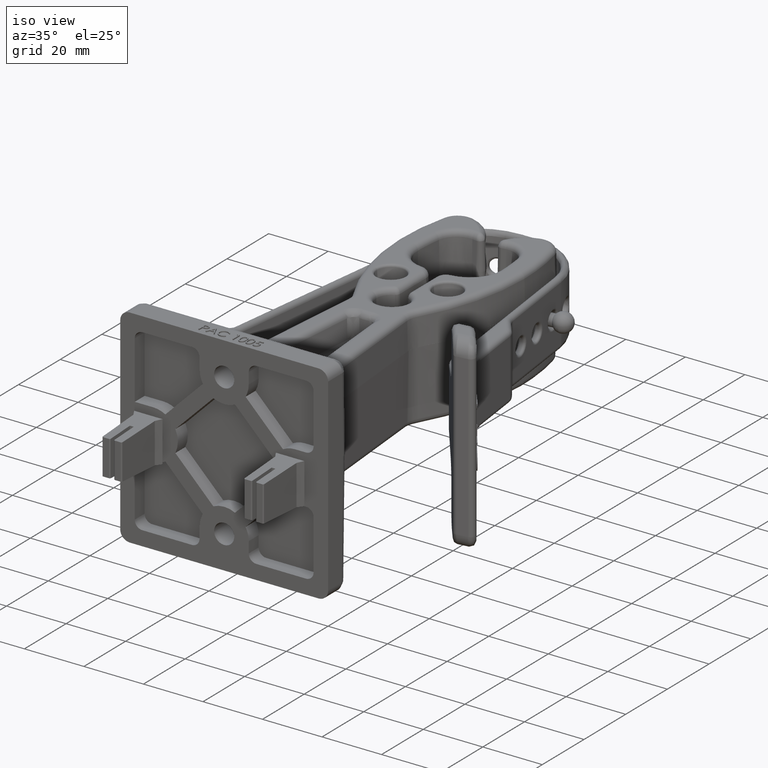
[diagram: clean part render]
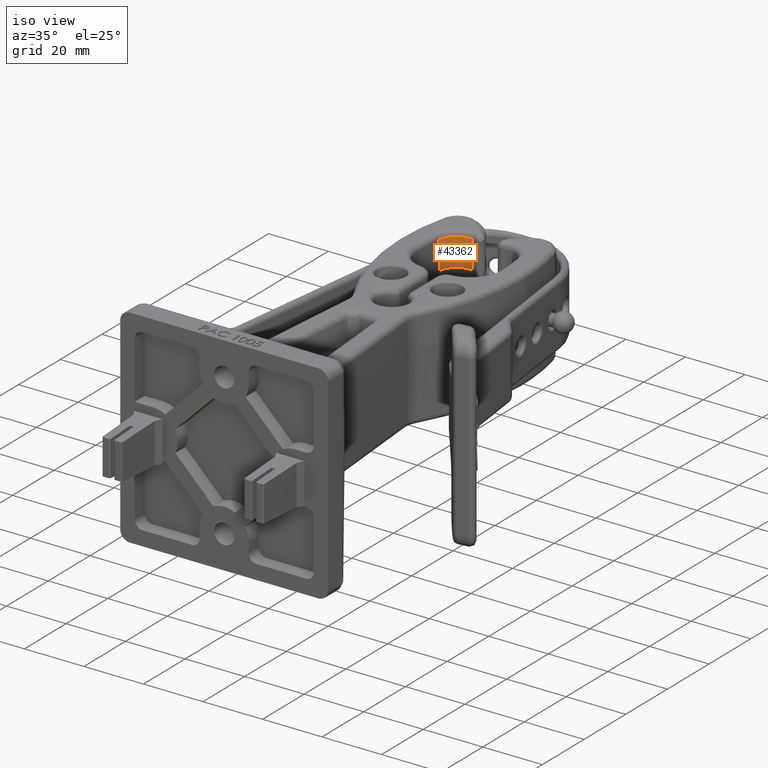
[diagram: same view with one face highlighted and labeled with its STEP entity id]
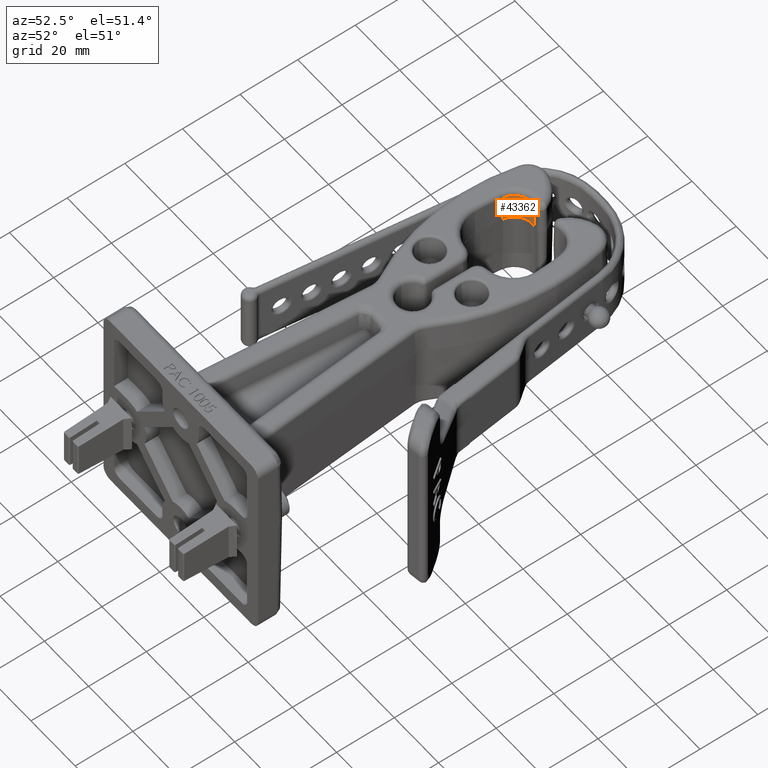
[diagram: same view with one face highlighted and labeled with its STEP entity id]
A machine part, iso view. The second image highlights one B-rep face of the part: STEP entity #43362.
A second angle (auxiliary view) of the same face is appended — the face is thin or edge-on in the first view.
In plain terms, the highlighted conical surface has half-angle 1 deg.
Its self-contained STEP definition (entity closure, byte-faithful):
#6987 = CARTESIAN_POINT ( 'NONE',  ( -0.2553476726425473200, 4.251692925097636100, 0.2500000000000000000 ) ) ;
#6988 = DIRECTION ( 'NONE',  ( -0.0000000000000000000, -0.0000000000000000000, -1.000000000000000000 ) ) ;
#6989 = DIRECTION ( 'NONE',  ( 1.000000000000000000, 0.0000000000000000000, 0.0000000000000000000 ) ) ;
#7461 = CIRCLE ( 'NONE', #24233, 0.2499999999999998100 ) ;
#7619 = LINE ( 'NONE', #8606, #7623 ) ;
#7623 = VECTOR ( 'NONE', #8607, 39.37007874015748100 ) ;
#7626 = CIRCLE ( 'NONE', #24289, 0.2563503085030424100 ) ;
#7629 = LINE ( 'NONE', #8610, #7630 ) ;
#7630 = VECTOR ( 'NONE', #8611, 39.37007874015748100 ) ;
#8593 = CARTESIAN_POINT ( 'NONE',  ( -0.2553476726425473200, 4.251692925097636100, 0.6138089304827962800 ) ) ;
#8604 = DIRECTION ( 'NONE',  ( 0.0000000000000000000, 0.0000000000000000000, 1.000000000000000000 ) ) ;
#8605 = DIRECTION ( 'NONE',  ( 1.000000000000000000, 0.0000000000000000000, 0.0000000000000000000 ) ) ;
#8606 = CARTESIAN_POINT ( 'NONE',  ( -0.5031949103857815700, 4.284430468424046600, 0.2500000000000000000 ) ) ;
#8607 = DIRECTION ( 'NONE',  ( 0.01730212290981188900, -0.002285395647562802800, -0.9998476951563912700 ) ) ;
#8610 = CARTESIAN_POINT ( 'NONE',  ( -0.2230883990493882600, 4.499602866945964200, 0.2500000000000000000 ) ) ;
#8611 = DIRECTION ( 'NONE',  ( -0.002252007816477254600, -0.01730650025992146900, -0.9998476951563912700 ) ) ;
#10892 = CARTESIAN_POINT ( 'NONE',  ( -0.2230883990493882600, 4.499602866945964200, 0.2500000000000000000 ) ) ;
#10893 = CARTESIAN_POINT ( 'NONE',  ( -0.5031949103857815700, 4.284430468424046600, 0.2500000000000000000 ) ) ;
#10980 = CARTESIAN_POINT ( 'NONE',  ( -0.5094905360709675000, 4.285262042423064500, 0.6138089304827961700 ) ) ;
#10981 = CARTESIAN_POINT ( 'NONE',  ( -0.2222689736917858300, 4.505900085392797300, 0.6138089304827963900 ) ) ;
#11788 = EDGE_LOOP ( 'NONE', ( #48384, #48385, #48386, #48387 ) ) ;
#22345 = EDGE_CURVE ( 'NONE', #23472, #23471, #7461, .T. ) ;
#22466 = EDGE_CURVE ( 'NONE', #23560, #23559, #7626, .T. ) ;
#22467 = EDGE_CURVE ( 'NONE', #23559, #23472, #7619, .T. ) ;
#22469 = EDGE_CURVE ( 'NONE', #23560, #23471, #7629, .T. ) ;
#23471 = VERTEX_POINT ( 'NONE', #10892 ) ;
#23472 = VERTEX_POINT ( 'NONE', #10893 ) ;
#23559 = VERTEX_POINT ( 'NONE', #10980 ) ;
#23560 = VERTEX_POINT ( 'NONE', #10981 ) ;
#24233 = AXIS2_PLACEMENT_3D ( 'NONE', #6987, #6988, #6989 ) ;
#24289 = AXIS2_PLACEMENT_3D ( 'NONE', #8593, #8604, #8605 ) ;
#24570 = AXIS2_PLACEMENT_3D ( 'NONE', #27369, #27368, #27364 ) ;
#27364 = DIRECTION ( 'NONE',  ( 1.000000000000000000, 0.0000000000000000000, 0.0000000000000000000 ) ) ;
#27368 = DIRECTION ( 'NONE',  ( 0.0000000000000000000, 0.0000000000000000000, 1.000000000000000000 ) ) ;
#27369 = CARTESIAN_POINT ( 'NONE',  ( -0.2553476726425473200, 4.251692925097636100, 0.2500000000000000000 ) ) ;
#28747 = FACE_OUTER_BOUND ( 'NONE', #11788, .T. ) ;
#28755 = CONICAL_SURFACE ( 'NONE', #24570, 0.2499999999999998100, 0.01745329251994333400 ) ;
#43362 = ADVANCED_FACE ( 'NONE', ( #28747 ), #28755, .F. ) ;
#48384 = ORIENTED_EDGE ( 'NONE', *, *, #22469, .F. ) ;
#48385 = ORIENTED_EDGE ( 'NONE', *, *, #22466, .T. ) ;
#48386 = ORIENTED_EDGE ( 'NONE', *, *, #22467, .T. ) ;
#48387 = ORIENTED_EDGE ( 'NONE', *, *, #22345, .T. ) ;